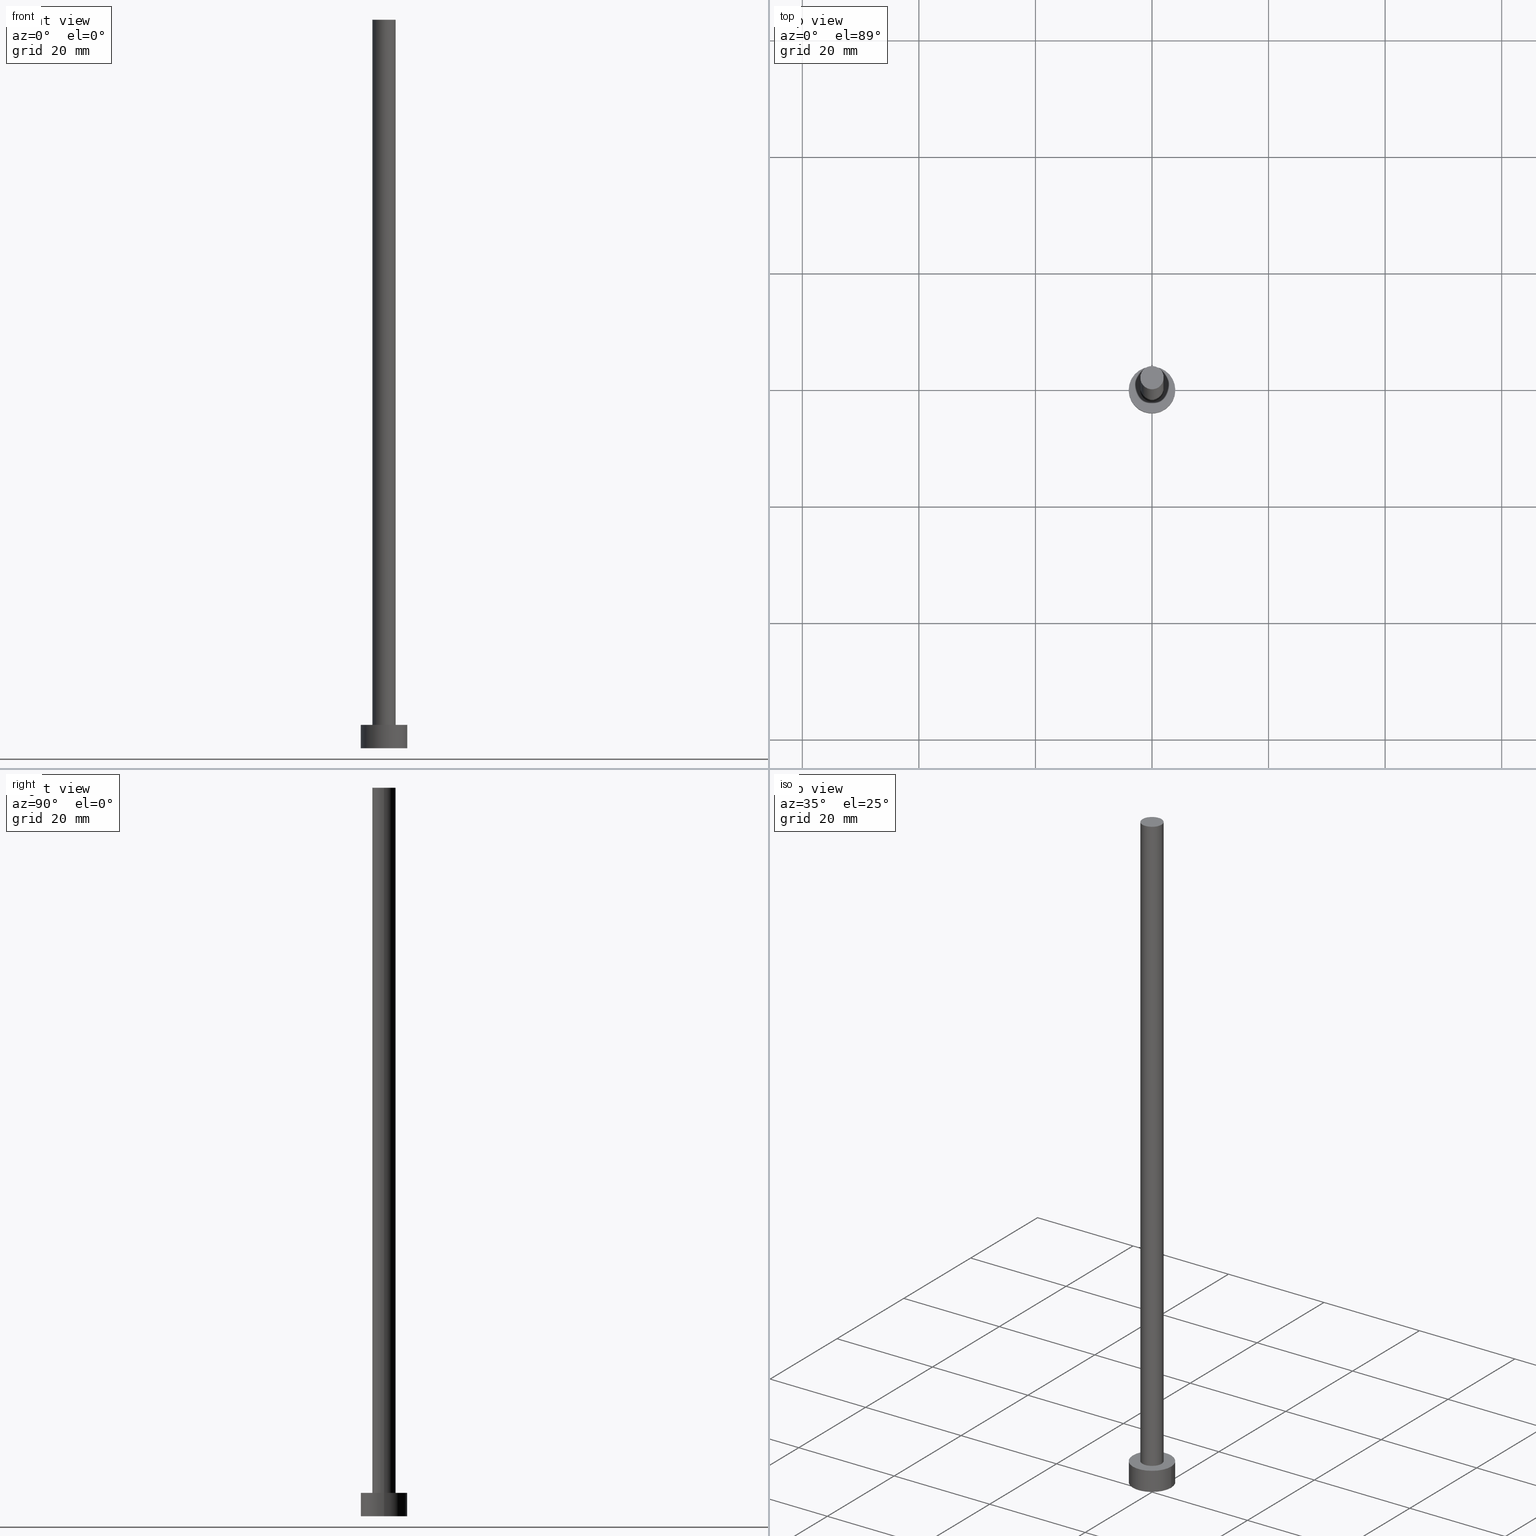
[diagram: canonical four-view strip — front | top / right | iso, engineering-drawing reading convention]
A machine part, canonical four-view strip (front | top / right | iso — engineering-drawing reading convention). The complete STEP part file that produces these views, byte-faithful:
ISO-10303-21;
HEADER;
FILE_DESCRIPTION (( 'STEP AP203' ),
    '1' );
FILE_NAME ('f815.STEP',
    '2023-02-13T16:37:33',
    ( '' ),
    ( '' ),
    'SwSTEP 2.0',
    'SolidWorks 2019',
    '' );
FILE_SCHEMA (( 'CONFIG_CONTROL_DESIGN' ));
ENDSEC;

DATA;
#1 = LOCAL_TIME ( 17, 37, 33.00000000000000000, #14 ) ;
#2 = VERTEX_POINT ( 'NONE', #146 ) ;
#3 = EDGE_CURVE ( 'NONE', #242, #41, #128, .T. ) ;
#4 = SHAPE_DEFINITION_REPRESENTATION ( #143, #104 ) ;
#5 = ORIENTED_EDGE ( 'NONE', *, *, #137, .T. ) ;
#6 = CARTESIAN_POINT ( 'NONE',  ( 0.000000000000000000, 0.000000000000000000, 125.0000000000000000 ) ) ;
#7 = CIRCLE ( 'NONE', #247, 4.000000000000000000 ) ;
#8 = CARTESIAN_POINT ( 'NONE',  ( 2.000000000000000000, 2.449293598294706414E-16, 125.0000000000000000 ) ) ;
#9 = ADVANCED_FACE ( 'NONE', ( #115 ), #175, .T. ) ;
#10 = EDGE_LOOP ( 'NONE', ( #176, #30, #162, #202 ) ) ;
#11 = LINE ( 'NONE', #8, #114 ) ;
#12 = ORIENTED_EDGE ( 'NONE', *, *, #32, .F. ) ;
#13 = PERSON_AND_ORGANIZATION_ROLE ( 'creator' ) ;
#14 = COORDINATED_UNIVERSAL_TIME_OFFSET ( 1, 0, .AHEAD. ) ;
#15 = EDGE_CURVE ( 'NONE', #154, #16, #48, .T. ) ;
#16 = VERTEX_POINT ( 'NONE', #255 ) ;
#17 = DIRECTION ( 'NONE',  ( 0.000000000000000000, 0.000000000000000000, 1.000000000000000000 ) ) ;
#18 = EDGE_CURVE ( 'NONE', #223, #156, #151, .T. ) ;
#19 = DATE_AND_TIME ( #246, #221 ) ;
#20 = PLANE ( 'NONE',  #240 ) ;
#21 = DATE_AND_TIME ( #74, #100 ) ;
#22 = FACE_OUTER_BOUND ( 'NONE', #195, .T. ) ;
#23 = ADVANCED_FACE ( 'NONE', ( #219 ), #20, .F. ) ;
#24 = EDGE_LOOP ( 'NONE', ( #129, #101, #198, #249 ) ) ;
#25 = ORIENTED_EDGE ( 'NONE', *, *, #172, .F. ) ;
#26 = ADVANCED_FACE ( 'NONE', ( #178 ), #113, .T. ) ;
#27 = DIRECTION ( 'NONE',  ( 1.000000000000000000, 0.000000000000000000, 0.000000000000000000 ) ) ;
#28 = ORIENTED_EDGE ( 'NONE', *, *, #233, .T. ) ;
#29 = CARTESIAN_POINT ( 'NONE',  ( 0.000000000000000000, 0.000000000000000000, 4.000000000000000000 ) ) ;
#30 = ORIENTED_EDGE ( 'NONE', *, *, #137, .F. ) ;
#31 = APPLICATION_PROTOCOL_DEFINITION ( 'international standard', 'config_control_design', 1994, #54 ) ;
#32 = EDGE_CURVE ( 'NONE', #78, #2, #122, .T. ) ;
#33 = DIRECTION ( 'NONE',  ( -1.000000000000000000, 0.000000000000000000, 0.000000000000000000 ) ) ;
#34 = DIRECTION ( 'NONE',  ( -1.000000000000000000, 0.000000000000000000, 0.000000000000000000 ) ) ;
#35 = DIRECTION ( 'NONE',  ( 1.000000000000000000, 0.000000000000000000, 0.000000000000000000 ) ) ;
#36 = AXIS2_PLACEMENT_3D ( 'NONE', #231, #207, #46 ) ;
#37 = DIRECTION ( 'NONE',  ( -0.000000000000000000, -0.000000000000000000, -1.000000000000000000 ) ) ;
#38 = FACE_OUTER_BOUND ( 'NONE', #24, .T. ) ;
#39 = PRODUCT_DEFINITION ( 'NEZN�M�', '', #153, #142 ) ;
#40 = DIRECTION ( 'NONE',  ( 0.000000000000000000, 0.000000000000000000, 1.000000000000000000 ) ) ;
#41 = VERTEX_POINT ( 'NONE', #50 ) ;
#42 = DIRECTION ( 'NONE',  ( 1.000000000000000000, 0.000000000000000000, 0.000000000000000000 ) ) ;
#43 = LOCAL_TIME ( 17, 37, 33.00000000000000000, #224 ) ;
#44 = CARTESIAN_POINT ( 'NONE',  ( 0.000000000000000000, 0.000000000000000000, 4.000000000000000000 ) ) ;
#45 = AXIS2_PLACEMENT_3D ( 'NONE', #6, #144, #173 ) ;
#46 = DIRECTION ( 'NONE',  ( 1.000000000000000000, 0.000000000000000000, 0.000000000000000000 ) ) ;
#47 = ADVANCED_FACE ( 'NONE', ( #209 ), #53, .T. ) ;
#48 = LINE ( 'NONE', #216, #92 ) ;
#49 = MANIFOLD_SOLID_BREP ( 'P�idat vysunut�m3', #57 ) ;
#50 = CARTESIAN_POINT ( 'NONE',  ( 2.000000000000000000, 2.449293598294706414E-16, 4.000000000000000000 ) ) ;
#51 = CIRCLE ( 'NONE', #192, 2.000000000000000000 ) ;
#52 = PERSON_AND_ORGANIZATION ( #200, #182 ) ;
#53 = CYLINDRICAL_SURFACE ( 'NONE', #133, 2.000000000000000000 ) ;
#54 = APPLICATION_CONTEXT ( 'configuration controlled 3d designs of mechanical parts and assemblies' ) ;
#55 = APPROVAL_DATE_TIME ( #21, #117 ) ;
#56 = APPROVAL_ROLE ( '' ) ;
#57 = CLOSED_SHELL ( 'NONE', ( #47, #236, #9, #99, #23, #26, #61 ) ) ;
#58 = CC_DESIGN_PERSON_AND_ORGANIZATION_ASSIGNMENT ( #252, #147, ( #153 ) ) ;
#59 = APPROVAL_STATUS ( 'not_yet_approved' ) ;
#60 = CC_DESIGN_SECURITY_CLASSIFICATION ( #68, ( #153 ) ) ;
#61 = ADVANCED_FACE ( 'NONE', ( #108 ), #73, .T. ) ;
#62 = DIRECTION ( 'NONE',  ( 1.000000000000000000, 0.000000000000000000, 0.000000000000000000 ) ) ;
#63 = DIRECTION ( 'NONE',  ( 0.000000000000000000, 0.000000000000000000, 1.000000000000000000 ) ) ;
#64 =( LENGTH_UNIT ( ) NAMED_UNIT ( * ) SI_UNIT ( .MILLI., .METRE. ) );
#65 = UNCERTAINTY_MEASURE_WITH_UNIT (LENGTH_MEASURE( 1.000000000000000082E-05 ), #64, 'distance_accuracy_value', 'NONE');
#66 = SECURITY_CLASSIFICATION_LEVEL ( 'unclassified' ) ;
#67 = AXIS2_PLACEMENT_3D ( 'NONE', #29, #121, #239 ) ;
#68 = SECURITY_CLASSIFICATION ( '', '', #66 ) ;
#69 = APPROVAL_PERSON_ORGANIZATION ( #52, #179, #130 ) ;
#70 = DATE_TIME_ROLE ( 'creation_date' ) ;
#71 = PLANE ( 'NONE',  #118 ) ;
#72 = FACE_BOUND ( 'NONE', #159, .T. ) ;
#73 = PLANE ( 'NONE',  #244 ) ;
#74 = CALENDAR_DATE ( 2023, 13, 2 ) ;
#75 = EDGE_LOOP ( 'NONE', ( #12, #199, #184, #83 ) ) ;
#76 = EDGE_LOOP ( 'NONE', ( #205, #106 ) ) ;
#77 = DIRECTION ( 'NONE',  ( 0.000000000000000000, 0.000000000000000000, 1.000000000000000000 ) ) ;
#78 = VERTEX_POINT ( 'NONE', #171 ) ;
#79 = VECTOR ( 'NONE', #217, 1000.000000000000000 ) ;
#80 = AXIS2_PLACEMENT_3D ( 'NONE', #226, #63, #98 ) ;
#81 = CARTESIAN_POINT ( 'NONE',  ( 4.000000000000000000, 4.898587196589412829E-16, 0.000000000000000000 ) ) ;
#82 = DIRECTION ( 'NONE',  ( 0.000000000000000000, 0.000000000000000000, 1.000000000000000000 ) ) ;
#83 = ORIENTED_EDGE ( 'NONE', *, *, #84, .F. ) ;
#84 = EDGE_CURVE ( 'NONE', #2, #242, #149, .T. ) ;
#85 = DATE_AND_TIME ( #168, #1 ) ;
#86 = ORIENTED_EDGE ( 'NONE', *, *, #126, .F. ) ;
#87 = DIRECTION ( 'NONE',  ( 1.000000000000000000, 0.000000000000000000, -0.000000000000000000 ) ) ;
#88 = APPROVAL_DATE_TIME ( #112, #206 ) ;
#89 = CARTESIAN_POINT ( 'NONE',  ( 0.000000000000000000, 0.000000000000000000, 0.000000000000000000 ) ) ;
#90 = DATE_TIME_ROLE ( 'classification_date' ) ;
#91 = DIRECTION ( 'NONE',  ( 0.000000000000000000, 0.000000000000000000, 1.000000000000000000 ) ) ;
#92 = VECTOR ( 'NONE', #134, 1000.000000000000000 ) ;
#93 = PERSON_AND_ORGANIZATION ( #200, #182 ) ;
#94 = CC_DESIGN_DATE_AND_TIME_ASSIGNMENT ( #194, #90, ( #68 ) ) ;
#95 = LOCAL_TIME ( 17, 37, 33.00000000000000000, #211 ) ;
#96 = CARTESIAN_POINT ( 'NONE',  ( 0.000000000000000000, 0.000000000000000000, 4.000000000000000000 ) ) ;
#97 = ORIENTED_EDGE ( 'NONE', *, *, #241, .T. ) ;
#98 = DIRECTION ( 'NONE',  ( 1.000000000000000000, 0.000000000000000000, 0.000000000000000000 ) ) ;
#99 = ADVANCED_FACE ( 'NONE', ( #72, #22 ), #71, .T. ) ;
#100 = LOCAL_TIME ( 17, 37, 33.00000000000000000, #174 ) ;
#101 = ORIENTED_EDGE ( 'NONE', *, *, #18, .T. ) ;
#102 =( NAMED_UNIT ( * ) SI_UNIT ( $, .STERADIAN. ) SOLID_ANGLE_UNIT ( ) );
#103 = CARTESIAN_POINT ( 'NONE',  ( -4.000000000000000000, 0.000000000000000000, 4.000000000000000000 ) ) ;
#104 = ADVANCED_BREP_SHAPE_REPRESENTATION ( 'f815', ( #49, #36 ), #141 ) ;
#105 = MECHANICAL_CONTEXT ( 'NONE', #54, 'mechanical' ) ;
#106 = ORIENTED_EDGE ( 'NONE', *, *, #127, .F. ) ;
#107 = COORDINATED_UNIVERSAL_TIME_OFFSET ( 1, 0, .AHEAD. ) ;
#108 = FACE_OUTER_BOUND ( 'NONE', #167, .T. ) ;
#109 = CC_DESIGN_APPROVAL ( #179, ( #39 ) ) ;
#110 = CALENDAR_DATE ( 2023, 13, 2 ) ;
#111 = DIRECTION ( 'NONE',  ( 1.000000000000000000, 0.000000000000000000, 0.000000000000000000 ) ) ;
#112 = DATE_AND_TIME ( #110, #95 ) ;
#113 = CYLINDRICAL_SURFACE ( 'NONE', #45, 2.000000000000000000 ) ;
#114 = VECTOR ( 'NONE', #139, 1000.000000000000000 ) ;
#115 = FACE_OUTER_BOUND ( 'NONE', #138, .T. ) ;
#116 = DIRECTION ( 'NONE',  ( 0.000000000000000000, 0.000000000000000000, 1.000000000000000000 ) ) ;
#117 = APPROVAL ( #59, 'NEUR�EN�' ) ;
#118 = AXIS2_PLACEMENT_3D ( 'NONE', #237, #40, #201 ) ;
#119 = AXIS2_PLACEMENT_3D ( 'NONE', #120, #77, #27 ) ;
#120 = CARTESIAN_POINT ( 'NONE',  ( 0.000000000000000000, 0.000000000000000000, 4.000000000000000000 ) ) ;
#121 = DIRECTION ( 'NONE',  ( 0.000000000000000000, 0.000000000000000000, 1.000000000000000000 ) ) ;
#122 = CIRCLE ( 'NONE', #152, 2.000000000000000000 ) ;
#123 = CYLINDRICAL_SURFACE ( 'NONE', #213, 4.000000000000000000 ) ;
#124 = PRODUCT ( 'f815', 'f815', '', ( #105 ) ) ;
#125 = CARTESIAN_POINT ( 'NONE',  ( 4.000000000000000000, 4.898587196589412829E-16, 4.000000000000000000 ) ) ;
#126 = EDGE_CURVE ( 'NONE', #154, #223, #158, .T. ) ;
#127 = EDGE_CURVE ( 'NONE', #156, #16, #148, .T. ) ;
#128 = CIRCLE ( 'NONE', #180, 2.000000000000000000 ) ;
#129 = ORIENTED_EDGE ( 'NONE', *, *, #241, .F. ) ;
#130 = APPROVAL_ROLE ( '' ) ;
#131 = CARTESIAN_POINT ( 'NONE',  ( 0.000000000000000000, 0.000000000000000000, 125.0000000000000000 ) ) ;
#132 = APPROVAL_ROLE ( '' ) ;
#133 = AXIS2_PLACEMENT_3D ( 'NONE', #191, #190, #33 ) ;
#134 = DIRECTION ( 'NONE',  ( -0.000000000000000000, -0.000000000000000000, -1.000000000000000000 ) ) ;
#135 = DIRECTION ( 'NONE',  ( 0.000000000000000000, 0.000000000000000000, 1.000000000000000000 ) ) ;
#136 = CARTESIAN_POINT ( 'NONE',  ( 4.000000000000000000, 4.898587196589412829E-16, 4.000000000000000000 ) ) ;
#137 = EDGE_CURVE ( 'NONE', #2, #78, #218, .T. ) ;
#138 = EDGE_LOOP ( 'NONE', ( #232, #86, #187, #28 ) ) ;
#139 = DIRECTION ( 'NONE',  ( -0.000000000000000000, -0.000000000000000000, -1.000000000000000000 ) ) ;
#140 = DIRECTION ( 'NONE',  ( 0.000000000000000000, 0.000000000000000000, 1.000000000000000000 ) ) ;
#141 =( GEOMETRIC_REPRESENTATION_CONTEXT ( 3 ) GLOBAL_UNCERTAINTY_ASSIGNED_CONTEXT ( ( #65 ) ) GLOBAL_UNIT_ASSIGNED_CONTEXT ( ( #64, #196, #102 ) ) REPRESENTATION_CONTEXT ( 'NONE', 'WORKASPACE' ) );
#142 = DESIGN_CONTEXT ( 'detailed design', #204, 'design' ) ;
#143 = PRODUCT_DEFINITION_SHAPE ( 'NONE', 'NONE',  #39 ) ;
#144 = DIRECTION ( 'NONE',  ( -0.000000000000000000, -0.000000000000000000, -1.000000000000000000 ) ) ;
#145 = APPROVAL_STATUS ( 'not_yet_approved' ) ;
#146 = CARTESIAN_POINT ( 'NONE',  ( -2.000000000000000000, 0.000000000000000000, 125.0000000000000000 ) ) ;
#147 = PERSON_AND_ORGANIZATION_ROLE ( 'design_supplier' ) ;
#148 = CIRCLE ( 'NONE', #80, 4.000000000000000000 ) ;
#149 = LINE ( 'NONE', #253, #230 ) ;
#150 = PERSON_AND_ORGANIZATION ( #200, #182 ) ;
#151 = LINE ( 'NONE', #136, #79 ) ;
#152 = AXIS2_PLACEMENT_3D ( 'NONE', #131, #135, #111 ) ;
#153 = PRODUCT_DEFINITION_FORMATION_WITH_SPECIFIED_SOURCE ( 'LIBOVOLN�', '', #124, .NOT_KNOWN. ) ;
#154 = VERTEX_POINT ( 'NONE', #103 ) ;
#155 = PERSON_AND_ORGANIZATION_ROLE ( 'classification_officer' ) ;
#156 = VERTEX_POINT ( 'NONE', #81 ) ;
#157 = DIRECTION ( 'NONE',  ( 1.000000000000000000, 0.000000000000000000, 0.000000000000000000 ) ) ;
#158 = CIRCLE ( 'NONE', #67, 4.000000000000000000 ) ;
#159 = EDGE_LOOP ( 'NONE', ( #228, #25 ) ) ;
#160 = CC_DESIGN_PERSON_AND_ORGANIZATION_ASSIGNMENT ( #150, #155, ( #68 ) ) ;
#161 = CARTESIAN_POINT ( 'NONE',  ( -2.000000000000000000, 0.000000000000000000, 4.000000000000000000 ) ) ;
#162 = ORIENTED_EDGE ( 'NONE', *, *, #84, .T. ) ;
#163 = AXIS2_PLACEMENT_3D ( 'NONE', #181, #197, #42 ) ;
#164 = CC_DESIGN_PERSON_AND_ORGANIZATION_ASSIGNMENT ( #170, #13, ( #153 ) ) ;
#165 = CIRCLE ( 'NONE', #119, 4.000000000000000000 ) ;
#166 = APPLICATION_PROTOCOL_DEFINITION ( 'international standard', 'config_control_design', 1994, #204 ) ;
#167 = EDGE_LOOP ( 'NONE', ( #5, #214 ) ) ;
#168 = CALENDAR_DATE ( 2023, 13, 2 ) ;
#169 = CC_DESIGN_APPROVAL ( #117, ( #68 ) ) ;
#170 = PERSON_AND_ORGANIZATION ( #200, #182 ) ;
#171 = CARTESIAN_POINT ( 'NONE',  ( 2.000000000000000000, 2.449293598294706414E-16, 125.0000000000000000 ) ) ;
#172 = EDGE_CURVE ( 'NONE', #41, #242, #51, .T. ) ;
#173 = DIRECTION ( 'NONE',  ( -1.000000000000000000, 0.000000000000000000, 0.000000000000000000 ) ) ;
#174 = COORDINATED_UNIVERSAL_TIME_OFFSET ( 1, 0, .AHEAD. ) ;
#175 = CYLINDRICAL_SURFACE ( 'NONE', #210, 4.000000000000000000 ) ;
#176 = ORIENTED_EDGE ( 'NONE', *, *, #225, .F. ) ;
#177 = ORIENTED_EDGE ( 'NONE', *, *, #126, .T. ) ;
#178 = FACE_OUTER_BOUND ( 'NONE', #10, .T. ) ;
#179 = APPROVAL ( #250, 'NEUR�EN�' ) ;
#180 = AXIS2_PLACEMENT_3D ( 'NONE', #234, #91, #35 ) ;
#181 = CARTESIAN_POINT ( 'NONE',  ( 0.000000000000000000, 0.000000000000000000, 125.0000000000000000 ) ) ;
#182 = ORGANIZATION ( 'NEUR�EN�', 'NEUR�EN�', '' ) ;
#183 = DIRECTION ( 'NONE',  ( -0.000000000000000000, -0.000000000000000000, -1.000000000000000000 ) ) ;
#184 = ORIENTED_EDGE ( 'NONE', *, *, #172, .T. ) ;
#185 = PERSON_AND_ORGANIZATION ( #200, #182 ) ;
#186 = CC_DESIGN_PERSON_AND_ORGANIZATION_ASSIGNMENT ( #248, #235, ( #39 ) ) ;
#187 = ORIENTED_EDGE ( 'NONE', *, *, #15, .T. ) ;
#188 = CARTESIAN_POINT ( 'NONE',  ( 0.000000000000000000, 0.000000000000000000, 125.0000000000000000 ) ) ;
#189 = PERSON_AND_ORGANIZATION ( #200, #182 ) ;
#190 = DIRECTION ( 'NONE',  ( -0.000000000000000000, -0.000000000000000000, -1.000000000000000000 ) ) ;
#191 = CARTESIAN_POINT ( 'NONE',  ( 0.000000000000000000, 0.000000000000000000, 125.0000000000000000 ) ) ;
#192 = AXIS2_PLACEMENT_3D ( 'NONE', #44, #140, #62 ) ;
#193 = DIRECTION ( 'NONE',  ( 1.000000000000000000, 0.000000000000000000, -0.000000000000000000 ) ) ;
#194 = DATE_AND_TIME ( #238, #43 ) ;
#195 = EDGE_LOOP ( 'NONE', ( #177, #97 ) ) ;
#196 =( NAMED_UNIT ( * ) PLANE_ANGLE_UNIT ( ) SI_UNIT ( $, .RADIAN. ) );
#197 = DIRECTION ( 'NONE',  ( 0.000000000000000000, 0.000000000000000000, 1.000000000000000000 ) ) ;
#198 = ORIENTED_EDGE ( 'NONE', *, *, #127, .T. ) ;
#199 = ORIENTED_EDGE ( 'NONE', *, *, #225, .T. ) ;
#200 = PERSON ( 'NEUR�EN�', 'NEUR�EN�', 'NEUR�EN�', ('NEUR�EN�'), ('NEUR�EN�'), ('NEUR�EN�') ) ;
#201 = DIRECTION ( 'NONE',  ( 1.000000000000000000, 0.000000000000000000, -0.000000000000000000 ) ) ;
#202 = ORIENTED_EDGE ( 'NONE', *, *, #3, .T. ) ;
#203 = DIRECTION ( 'NONE',  ( -1.000000000000000000, 0.000000000000000000, 0.000000000000000000 ) ) ;
#204 = APPLICATION_CONTEXT ( 'configuration controlled 3d designs of mechanical parts and assemblies' ) ;
#205 = ORIENTED_EDGE ( 'NONE', *, *, #233, .F. ) ;
#206 = APPROVAL ( #145, 'NEUR�EN�' ) ;
#207 = DIRECTION ( 'NONE',  ( 0.000000000000000000, 0.000000000000000000, 1.000000000000000000 ) ) ;
#208 = APPROVAL_DATE_TIME ( #85, #179 ) ;
#209 = FACE_OUTER_BOUND ( 'NONE', #75, .T. ) ;
#210 = AXIS2_PLACEMENT_3D ( 'NONE', #96, #37, #34 ) ;
#211 = COORDINATED_UNIVERSAL_TIME_OFFSET ( 1, 0, .AHEAD. ) ;
#212 = CC_DESIGN_PERSON_AND_ORGANIZATION_ASSIGNMENT ( #185, #215, ( #124 ) ) ;
#213 = AXIS2_PLACEMENT_3D ( 'NONE', #227, #183, #203 ) ;
#214 = ORIENTED_EDGE ( 'NONE', *, *, #32, .T. ) ;
#215 = PERSON_AND_ORGANIZATION_ROLE ( 'design_owner' ) ;
#216 = CARTESIAN_POINT ( 'NONE',  ( -4.000000000000000000, 0.000000000000000000, 4.000000000000000000 ) ) ;
#217 = DIRECTION ( 'NONE',  ( -0.000000000000000000, -0.000000000000000000, -1.000000000000000000 ) ) ;
#218 = CIRCLE ( 'NONE', #163, 2.000000000000000000 ) ;
#219 = FACE_OUTER_BOUND ( 'NONE', #76, .T. ) ;
#220 = APPROVAL_PERSON_ORGANIZATION ( #93, #117, #56 ) ;
#221 = LOCAL_TIME ( 17, 37, 33.00000000000000000, #107 ) ;
#222 = PRODUCT_RELATED_PRODUCT_CATEGORY ( 'detail', '', ( #124 ) ) ;
#223 = VERTEX_POINT ( 'NONE', #125 ) ;
#224 = COORDINATED_UNIVERSAL_TIME_OFFSET ( 1, 0, .AHEAD. ) ;
#225 = EDGE_CURVE ( 'NONE', #78, #41, #11, .T. ) ;
#226 = CARTESIAN_POINT ( 'NONE',  ( 0.000000000000000000, 0.000000000000000000, 0.000000000000000000 ) ) ;
#227 = CARTESIAN_POINT ( 'NONE',  ( 0.000000000000000000, 0.000000000000000000, 4.000000000000000000 ) ) ;
#228 = ORIENTED_EDGE ( 'NONE', *, *, #3, .F. ) ;
#229 = APPROVAL_PERSON_ORGANIZATION ( #189, #206, #132 ) ;
#230 = VECTOR ( 'NONE', #251, 1000.000000000000000 ) ;
#231 = CARTESIAN_POINT ( 'NONE',  ( 0.000000000000000000, 0.000000000000000000, 0.000000000000000000 ) ) ;
#232 = ORIENTED_EDGE ( 'NONE', *, *, #18, .F. ) ;
#233 = EDGE_CURVE ( 'NONE', #16, #156, #7, .T. ) ;
#234 = CARTESIAN_POINT ( 'NONE',  ( 0.000000000000000000, 0.000000000000000000, 4.000000000000000000 ) ) ;
#235 = PERSON_AND_ORGANIZATION_ROLE ( 'creator' ) ;
#236 = ADVANCED_FACE ( 'NONE', ( #38 ), #123, .T. ) ;
#237 = CARTESIAN_POINT ( 'NONE',  ( 0.000000000000000000, 0.000000000000000000, 4.000000000000000000 ) ) ;
#238 = CALENDAR_DATE ( 2023, 13, 2 ) ;
#239 = DIRECTION ( 'NONE',  ( 1.000000000000000000, 0.000000000000000000, 0.000000000000000000 ) ) ;
#240 = AXIS2_PLACEMENT_3D ( 'NONE', #89, #116, #193 ) ;
#241 = EDGE_CURVE ( 'NONE', #223, #154, #165, .T. ) ;
#242 = VERTEX_POINT ( 'NONE', #161 ) ;
#243 = CARTESIAN_POINT ( 'NONE',  ( 0.000000000000000000, 0.000000000000000000, 0.000000000000000000 ) ) ;
#244 = AXIS2_PLACEMENT_3D ( 'NONE', #188, #17, #87 ) ;
#245 = CC_DESIGN_APPROVAL ( #206, ( #153 ) ) ;
#246 = CALENDAR_DATE ( 2023, 13, 2 ) ;
#247 = AXIS2_PLACEMENT_3D ( 'NONE', #243, #82, #157 ) ;
#248 = PERSON_AND_ORGANIZATION ( #200, #182 ) ;
#249 = ORIENTED_EDGE ( 'NONE', *, *, #15, .F. ) ;
#250 = APPROVAL_STATUS ( 'not_yet_approved' ) ;
#251 = DIRECTION ( 'NONE',  ( -0.000000000000000000, -0.000000000000000000, -1.000000000000000000 ) ) ;
#252 = PERSON_AND_ORGANIZATION ( #200, #182 ) ;
#253 = CARTESIAN_POINT ( 'NONE',  ( -2.000000000000000000, 0.000000000000000000, 125.0000000000000000 ) ) ;
#254 = CC_DESIGN_DATE_AND_TIME_ASSIGNMENT ( #19, #70, ( #39 ) ) ;
#255 = CARTESIAN_POINT ( 'NONE',  ( -4.000000000000000000, 0.000000000000000000, 0.000000000000000000 ) ) ;
ENDSEC;
END-ISO-10303-21;
